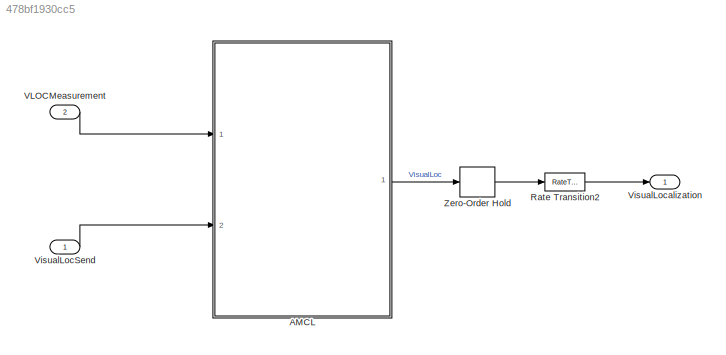
MODEL slx_478bf1930cc5
KIND model
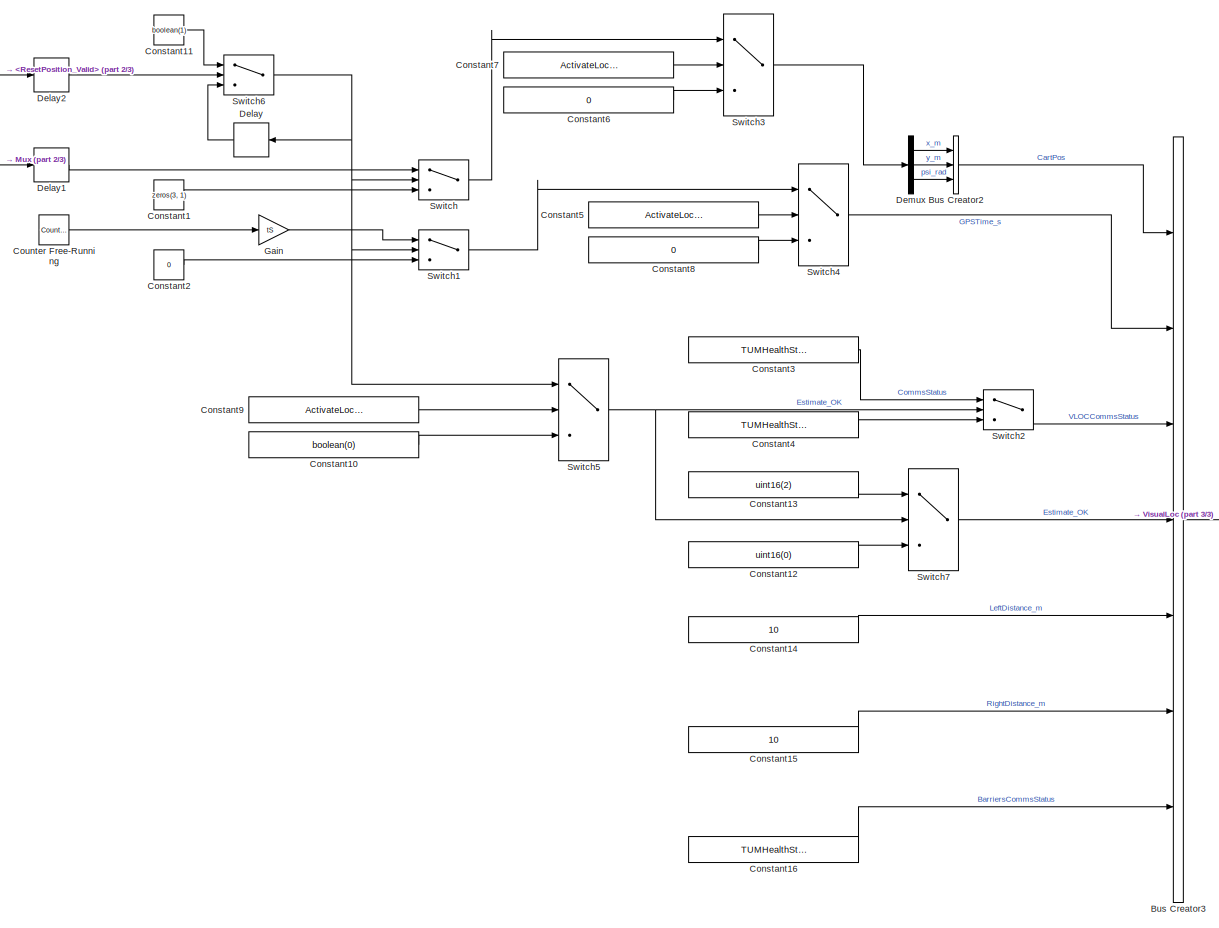
[diagram: AMCL - part 1/3, center side, full height]
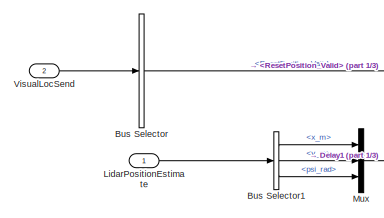
[diagram: AMCL - part 2/3, top left region]
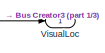
[diagram: AMCL - part 3/3, middle right region]
BLOCK [SubSystem] AMCL
  Ports = [2, 1]
  RequestExecContextInheritance = off
  SystemSampleTime = tSSlow
BLOCK [BusCreator] AMCL/Bus Creator2
  DisplayOption = bar
  InheritFromInputs = on
  Inputs = 3
  Ports = [3, 1]
BLOCK [BusCreator] AMCL/Bus Creator3
  DisplayOption = bar
  InheritFromInputs = on
  Inputs = 7
  OutDataTypeStr = Bus: VisualLoc
  Ports = [7, 1]
BLOCK [BusSelector] AMCL/Bus Selector
  OutputAsBus = off
  OutputSignals = ResetPosition_Valid
  Ports = [1, 1]
BLOCK [BusSelector] AMCL/Bus Selector1
  OutputAsBus = off
  OutputSignals = x_m,y_m,psi_rad
  Ports = [1, 3]
BLOCK [Constant] AMCL/Constant1
  Value = zeros(3, 1)
BLOCK [Constant] AMCL/Constant10
  Value = boolean(0)
BLOCK [Constant] AMCL/Constant11
  OutDataTypeStr = boolean
  Value = boolean(1)
BLOCK [Constant] AMCL/Constant12
  Value = uint16(0)
BLOCK [Constant] AMCL/Constant13
  Value = uint16(2)
BLOCK [Constant] AMCL/Constant14
  Value = 10
BLOCK [Constant] AMCL/Constant15
  Value = 10
BLOCK [Constant] AMCL/Constant16
  OutDataTypeStr = Enum: TUMHealthStatus
  Value = TUMHealthStatus.ERROR
BLOCK [Constant] AMCL/Constant2
  Value = 0
BLOCK [Constant] AMCL/Constant3
  OutDataTypeStr = Enum: TUMHealthStatus
  Value = TUMHealthStatus.OK
BLOCK [Constant] AMCL/Constant4
  OutDataTypeStr = Enum: TUMHealthStatus
  Value = TUMHealthStatus.ERROR
BLOCK [Constant] AMCL/Constant5
  Value = ActivateLoc_PX2
BLOCK [Constant] AMCL/Constant6
  Value = 0
BLOCK [Constant] AMCL/Constant7
  Value = ActivateLoc_PX2
BLOCK [Constant] AMCL/Constant8
  Value = 0
BLOCK [Constant] AMCL/Constant9
  Value = ActivateLoc_PX2
BLOCK [Reference] AMCL/Counter Free-Running  REF=simulink/Sources/Counter
Free-Running
  Ports = [0, 1]
  SourceBlock = simulink/Sources/Counter\nFree-Running
  SourceProductBaseCode = SL
  SourceProductName = Simulink
  SourceType = Counter Free-Running
BLOCK [Delay] AMCL/Delay
  DelayLength = 1
  InitialCondition = boolean(0)
  InputPortMap = u0
  Ports = [1, 1]
BLOCK [Delay] AMCL/Delay1
  DelayLength = P_PX2_AMCLDelay_s/tS
  InputPortMap = u0
  Ports = [1, 1]
BLOCK [Delay] AMCL/Delay2
  DelayLength = P_PX2_AMCLDelay_s/tS
  InitialCondition = boolean(1)
  InputPortMap = u0
  Ports = [1, 1]
BLOCK [Demux] AMCL/Demux
  DisplayOption = bar
  Outputs = 3
  Ports = [1, 3]
BLOCK [Gain] AMCL/Gain
  Gain = tS
  OutDataTypeStr = Inherit: Inherit via internal rule
  ParamDataTypeStr = Inherit: Inherit via internal rule
  SaturateOnIntegerOverflow = off
BLOCK [Inport] AMCL/LidarPositionEstimate
  IconDisplay = Port number
BLOCK [Mux] AMCL/Mux
  DisplayOption = bar
  Inputs = 3
  Ports = [3, 1]
BLOCK [Switch] AMCL/Switch
  Criteria = u2 ~= 0
  InputSameDT = off
  SaturateOnIntegerOverflow = off
BLOCK [Switch] AMCL/Switch1
  Criteria = u2 ~= 0
  InputSameDT = off
  SaturateOnIntegerOverflow = off
BLOCK [Switch] AMCL/Switch2
  Criteria = u2 > Threshold
  InputSameDT = off
  OutDataTypeStr = Enum: TUMHealthStatus
  SaturateOnIntegerOverflow = off
BLOCK [Switch] AMCL/Switch3
  Criteria = u2 > Threshold
  InputSameDT = off
  SaturateOnIntegerOverflow = off
BLOCK [Switch] AMCL/Switch4
  Criteria = u2 > Threshold
  InputSameDT = off
  SaturateOnIntegerOverflow = off
BLOCK [Switch] AMCL/Switch5
  Criteria = u2 ~= 0
  InputSameDT = off
  SaturateOnIntegerOverflow = off
BLOCK [Switch] AMCL/Switch6
  Criteria = u2 ~= 0
  InputSameDT = off
  SaturateOnIntegerOverflow = off
BLOCK [Switch] AMCL/Switch7
  Criteria = u2 ~= 0
  InputSameDT = off
  SaturateOnIntegerOverflow = off
BLOCK [Outport] AMCL/VisualLoc
  IconDisplay = Port number
  OutDataTypeStr = Bus: VisualLoc
BLOCK [Inport] AMCL/VisualLocSend
  IconDisplay = Port number
  Port = 2
BLOCK [RateTransition] Rate Transition2
  Deterministic = off
BLOCK [Inport] VLOCMeasurement
  IconDisplay = Port number
  OutDataTypeStr = Bus: CartPos
  Port = 2
  SampleTime = tS
BLOCK [Inport] VisualLocSend
  IconDisplay = Port number
  OutDataTypeStr = Bus: VisualLoc_Send
  SampleTime = tS
BLOCK [Outport] VisualLocalization
  BusOutputAsStruct = on
  IconDisplay = Port number
  OutDataTypeStr = Bus: VisualLoc
  SampleTime = tS
BLOCK [RateTransition] Zero-Order Hold
  OutPortSampleTime = 0.04
LINE AMCL/Bus Creator2:1 -> AMCL/Bus Creator3:1
LINE AMCL/Bus Creator3:1 -> AMCL/VisualLoc:1
LINE AMCL/Bus Selector1:1 -> AMCL/Mux:1
LINE AMCL/Bus Selector1:2 -> AMCL/Mux:2
LINE AMCL/Bus Selector1:3 -> AMCL/Mux:3
LINE AMCL/Bus Selector:1 -> AMCL/Delay2:1
LINE AMCL/Constant10:1 -> AMCL/Switch5:3
LINE AMCL/Constant11:1 -> AMCL/Switch6:1
LINE AMCL/Constant12:1 -> AMCL/Switch7:3
LINE AMCL/Constant13:1 -> AMCL/Switch7:1
LINE AMCL/Constant14:1 -> AMCL/Bus Creator3:5
LINE AMCL/Constant15:1 -> AMCL/Bus Creator3:6
LINE AMCL/Constant16:1 -> AMCL/Bus Creator3:7
LINE AMCL/Constant1:1 -> AMCL/Switch:3
LINE AMCL/Constant2:1 -> AMCL/Switch1:3
LINE AMCL/Constant3:1 -> AMCL/Switch2:1
LINE AMCL/Constant4:1 -> AMCL/Switch2:3
LINE AMCL/Constant5:1 -> AMCL/Switch4:2
LINE AMCL/Constant6:1 -> AMCL/Switch3:3
LINE AMCL/Constant7:1 -> AMCL/Switch3:2
LINE AMCL/Constant8:1 -> AMCL/Switch4:3
LINE AMCL/Constant9:1 -> AMCL/Switch5:2
LINE AMCL/Counter Free-Running:1 -> AMCL/Gain:1
LINE AMCL/Delay1:1 -> AMCL/Switch:1
LINE AMCL/Delay2:1 -> AMCL/Switch6:2
LINE AMCL/Delay:1 -> AMCL/Switch6:3
LINE AMCL/Demux:1 -> AMCL/Bus Creator2:1
LINE AMCL/Demux:2 -> AMCL/Bus Creator2:2
LINE AMCL/Demux:3 -> AMCL/Bus Creator2:3
LINE AMCL/Gain:1 -> AMCL/Switch1:1
LINE AMCL/LidarPositionEstimate:1 -> AMCL/Bus Selector1:1
LINE AMCL/Mux:1 -> AMCL/Delay1:1
LINE AMCL/Switch1:1 -> AMCL/Switch4:1
LINE AMCL/Switch2:1 -> AMCL/Bus Creator3:3
LINE AMCL/Switch3:1 -> AMCL/Demux:1
LINE AMCL/Switch4:1 -> AMCL/Bus Creator3:2
NET AMCL/Switch5:1 -> AMCL/Switch2:2, AMCL/Switch7:2
NET AMCL/Switch6:1 -> AMCL/Delay:1, AMCL/Switch1:2, AMCL/Switch5:1, AMCL/Switch:2
LINE AMCL/Switch7:1 -> AMCL/Bus Creator3:4
LINE AMCL/Switch:1 -> AMCL/Switch3:1
LINE AMCL/VisualLocSend:1 -> AMCL/Bus Selector:1
LINE AMCL:1 -> Zero-Order Hold:1
LINE Rate Transition2:1 -> VisualLocalization:1
LINE VLOCMeasurement:1 -> AMCL:1
LINE VisualLocSend:1 -> AMCL:2
LINE Zero-Order Hold:1 -> Rate Transition2:1
note: NET lines group one-source signal fan-out (src -> all destinations, sorted); 1:1 wires keep LINE
